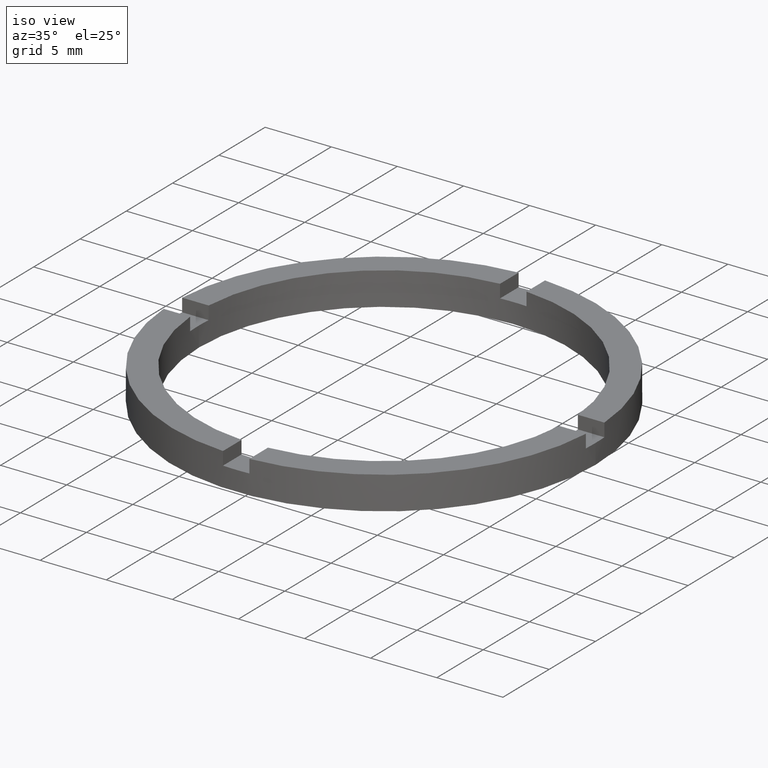
[diagram: clean part render]
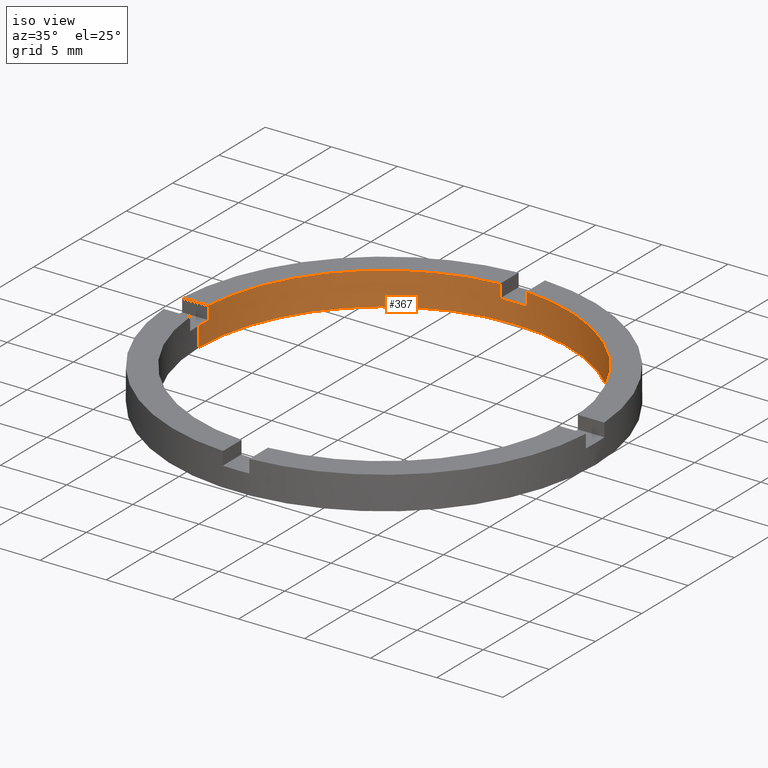
[diagram: same view with one face highlighted and labeled with its STEP entity id]
A machine part, iso view. The second image highlights one B-rep face of the part: STEP entity #367.
In plain terms, the highlighted cylindrical surface (partial cylindrical patch) has radius 14 mm, axis along (-0, -0, -1).
Its self-contained STEP definition (entity closure, byte-faithful):
#3 = DIRECTION ( 'NONE',  ( 1.000000000000000000, 0.000000000000000000, 0.000000000000000000 ) ) ;
#14 = CARTESIAN_POINT ( 'NONE',  ( 14.00000000000000000, 1.714505518806294638E-15, 0.000000000000000000 ) ) ;
#15 = CARTESIAN_POINT ( 'NONE',  ( 0.000000000000000000, 0.000000000000000000, 1.500000000000000000 ) ) ;
#21 = CARTESIAN_POINT ( 'NONE',  ( 0.9999999999999751310, 13.96424004376894423, 2.500000000000000000 ) ) ;
#57 = AXIS2_PLACEMENT_3D ( 'NONE', #622, #369, #714 ) ;
#72 = EDGE_LOOP ( 'NONE', ( #407, #153, #203, #399, #496, #404, #638, #409, #716, #642, #121, #150 ) ) ;
#87 = EDGE_CURVE ( 'NONE', #633, #169, #712, .T. ) ;
#98 = VERTEX_POINT ( 'NONE', #314 ) ;
#103 = CARTESIAN_POINT ( 'NONE',  ( -14.00000000000000000, 0.000000000000000000, 1.500000000000000000 ) ) ;
#121 = ORIENTED_EDGE ( 'NONE', *, *, #247, .T. ) ;
#122 = CARTESIAN_POINT ( 'NONE',  ( 13.96424004376895311, 0.9999999999998409050, 2.500000000000000000 ) ) ;
#149 = VERTEX_POINT ( 'NONE', #449 ) ;
#150 = ORIENTED_EDGE ( 'NONE', *, *, #593, .F. ) ;
#153 = ORIENTED_EDGE ( 'NONE', *, *, #278, .T. ) ;
#158 = CIRCLE ( 'NONE', #234, 14.00000000000000000 ) ;
#162 = CARTESIAN_POINT ( 'NONE',  ( 0.000000000000000000, 0.000000000000000000, 0.000000000000000000 ) ) ;
#169 = VERTEX_POINT ( 'NONE', #318 ) ;
#170 = VECTOR ( 'NONE', #259, 1000.000000000000000 ) ;
#188 = VERTEX_POINT ( 'NONE', #21 ) ;
#194 = EDGE_CURVE ( 'NONE', #345, #188, #665, .T. ) ;
#195 = CARTESIAN_POINT ( 'NONE',  ( 0.000000000000000000, 0.000000000000000000, 2.500000000000000000 ) ) ;
#203 = ORIENTED_EDGE ( 'NONE', *, *, #291, .F. ) ;
#204 = CARTESIAN_POINT ( 'NONE',  ( -14.00000000000000000, 0.000000000000000000, 2.500000000000000000 ) ) ;
#205 = CARTESIAN_POINT ( 'NONE',  ( -13.96424004376894246, 0.9999999999999772404, 2.500000000000000000 ) ) ;
#206 = VERTEX_POINT ( 'NONE', #284 ) ;
#212 = CIRCLE ( 'NONE', #250, 14.00000000000000000 ) ;
#219 = DIRECTION ( 'NONE',  ( -0.000000000000000000, -0.000000000000000000, -1.000000000000000000 ) ) ;
#222 = VECTOR ( 'NONE', #249, 1000.000000000000000 ) ;
#226 = VECTOR ( 'NONE', #265, 1000.000000000000000 ) ;
#230 = CYLINDRICAL_SURFACE ( 'NONE', #57, 14.00000000000000000 ) ;
#234 = AXIS2_PLACEMENT_3D ( 'NONE', #587, #543, #274 ) ;
#237 = AXIS2_PLACEMENT_3D ( 'NONE', #390, #544, #319 ) ;
#245 = CARTESIAN_POINT ( 'NONE',  ( 0.000000000000000000, 0.000000000000000000, 2.500000000000000000 ) ) ;
#247 = EDGE_CURVE ( 'NONE', #745, #206, #675, .T. ) ;
#249 = DIRECTION ( 'NONE',  ( 0.000000000000000000, 0.000000000000000000, 1.000000000000000000 ) ) ;
#250 = AXIS2_PLACEMENT_3D ( 'NONE', #162, #464, #3 ) ;
#259 = DIRECTION ( 'NONE',  ( -0.000000000000000000, -0.000000000000000000, -1.000000000000000000 ) ) ;
#265 = DIRECTION ( 'NONE',  ( -0.000000000000000000, -0.000000000000000000, -1.000000000000000000 ) ) ;
#269 = AXIS2_PLACEMENT_3D ( 'NONE', #245, #709, #281 ) ;
#274 = DIRECTION ( 'NONE',  ( 1.000000000000000000, 0.000000000000000000, 0.000000000000000000 ) ) ;
#278 = EDGE_CURVE ( 'NONE', #394, #453, #158, .T. ) ;
#281 = DIRECTION ( 'NONE',  ( 1.000000000000000000, 0.000000000000000000, 0.000000000000000000 ) ) ;
#284 = CARTESIAN_POINT ( 'NONE',  ( -14.00000000000000000, 0.000000000000000000, 0.000000000000000000 ) ) ;
#286 = EDGE_CURVE ( 'NONE', #394, #608, #411, .T. ) ;
#291 = EDGE_CURVE ( 'NONE', #345, #453, #428, .T. ) ;
#298 = CARTESIAN_POINT ( 'NONE',  ( 13.96424004376895311, 0.9999999999998409050, 2.500000000000000000 ) ) ;
#314 = CARTESIAN_POINT ( 'NONE',  ( -13.96424004376894246, 0.9999999999999772404, 1.500000000000000000 ) ) ;
#318 = CARTESIAN_POINT ( 'NONE',  ( -1.000000000000024869, 13.96424004376894068, 1.500000000000000000 ) ) ;
#319 = DIRECTION ( 'NONE',  ( 1.000000000000000000, 0.000000000000000000, 0.000000000000000000 ) ) ;
#344 = LINE ( 'NONE', #643, #657 ) ;
#345 = VERTEX_POINT ( 'NONE', #298 ) ;
#367 = ADVANCED_FACE ( 'NONE', ( #485 ), #230, .F. ) ;
#369 = DIRECTION ( 'NONE',  ( -0.000000000000000000, -0.000000000000000000, -1.000000000000000000 ) ) ;
#390 = CARTESIAN_POINT ( 'NONE',  ( 0.000000000000000000, 0.000000000000000000, 1.500000000000000000 ) ) ;
#394 = VERTEX_POINT ( 'NONE', #703 ) ;
#399 = ORIENTED_EDGE ( 'NONE', *, *, #194, .T. ) ;
#403 = EDGE_CURVE ( 'NONE', #149, #169, #470, .T. ) ;
#404 = ORIENTED_EDGE ( 'NONE', *, *, #87, .T. ) ;
#407 = ORIENTED_EDGE ( 'NONE', *, *, #286, .F. ) ;
#409 = ORIENTED_EDGE ( 'NONE', *, *, #586, .T. ) ;
#411 = LINE ( 'NONE', #500, #427 ) ;
#417 = DIRECTION ( 'NONE',  ( 1.000000000000000000, 0.000000000000000000, 0.000000000000000000 ) ) ;
#427 = VECTOR ( 'NONE', #718, 1000.000000000000000 ) ;
#428 = LINE ( 'NONE', #122, #429 ) ;
#429 = VECTOR ( 'NONE', #219, 1000.000000000000000 ) ;
#449 = CARTESIAN_POINT ( 'NONE',  ( -1.000000000000024869, 13.96424004376894068, 2.500000000000000000 ) ) ;
#453 = VERTEX_POINT ( 'NONE', #541 ) ;
#464 = DIRECTION ( 'NONE',  ( 0.000000000000000000, 0.000000000000000000, 1.000000000000000000 ) ) ;
#470 = LINE ( 'NONE', #779, #226 ) ;
#485 = FACE_OUTER_BOUND ( 'NONE', #72, .T. ) ;
#496 = ORIENTED_EDGE ( 'NONE', *, *, #694, .F. ) ;
#500 = CARTESIAN_POINT ( 'NONE',  ( 14.00000000000000000, 1.714505518806294638E-15, 2.500000000000000000 ) ) ;
#541 = CARTESIAN_POINT ( 'NONE',  ( 13.96424004376895311, 0.9999999999998409050, 1.500000000000000000 ) ) ;
#543 = DIRECTION ( 'NONE',  ( 0.000000000000000000, 0.000000000000000000, 1.000000000000000000 ) ) ;
#544 = DIRECTION ( 'NONE',  ( 0.000000000000000000, -0.000000000000000000, 1.000000000000000000 ) ) ;
#557 = DIRECTION ( 'NONE',  ( 0.000000000000000000, 0.000000000000000000, 1.000000000000000000 ) ) ;
#566 = EDGE_CURVE ( 'NONE', #98, #719, #758, .T. ) ;
#580 = EDGE_CURVE ( 'NONE', #98, #745, #746, .T. ) ;
#586 = EDGE_CURVE ( 'NONE', #149, #719, #763, .T. ) ;
#587 = CARTESIAN_POINT ( 'NONE',  ( 0.000000000000000000, 0.000000000000000000, 1.500000000000000000 ) ) ;
#589 = DIRECTION ( 'NONE',  ( 0.000000000000000000, 0.000000000000000000, 1.000000000000000000 ) ) ;
#592 = AXIS2_PLACEMENT_3D ( 'NONE', #15, #557, #417 ) ;
#593 = EDGE_CURVE ( 'NONE', #608, #206, #212, .T. ) ;
#608 = VERTEX_POINT ( 'NONE', #14 ) ;
#622 = CARTESIAN_POINT ( 'NONE',  ( 0.000000000000000000, 0.000000000000000000, 2.500000000000000000 ) ) ;
#633 = VERTEX_POINT ( 'NONE', #733 ) ;
#636 = CARTESIAN_POINT ( 'NONE',  ( -13.96424004376894246, 0.9999999999999772404, 2.500000000000000000 ) ) ;
#638 = ORIENTED_EDGE ( 'NONE', *, *, #403, .F. ) ;
#642 = ORIENTED_EDGE ( 'NONE', *, *, #580, .T. ) ;
#643 = CARTESIAN_POINT ( 'NONE',  ( 0.9999999999999751310, 13.96424004376894423, 2.500000000000000000 ) ) ;
#657 = VECTOR ( 'NONE', #741, 1000.000000000000000 ) ;
#665 = CIRCLE ( 'NONE', #688, 14.00000000000000000 ) ;
#675 = LINE ( 'NONE', #204, #170 ) ;
#688 = AXIS2_PLACEMENT_3D ( 'NONE', #195, #589, #762 ) ;
#694 = EDGE_CURVE ( 'NONE', #633, #188, #344, .T. ) ;
#703 = CARTESIAN_POINT ( 'NONE',  ( 14.00000000000000000, 1.714505518806294638E-15, 1.500000000000000000 ) ) ;
#709 = DIRECTION ( 'NONE',  ( 0.000000000000000000, 0.000000000000000000, 1.000000000000000000 ) ) ;
#712 = CIRCLE ( 'NONE', #237, 14.00000000000000000 ) ;
#714 = DIRECTION ( 'NONE',  ( -1.000000000000000000, 0.000000000000000000, 0.000000000000000000 ) ) ;
#716 = ORIENTED_EDGE ( 'NONE', *, *, #566, .F. ) ;
#718 = DIRECTION ( 'NONE',  ( -0.000000000000000000, -0.000000000000000000, -1.000000000000000000 ) ) ;
#719 = VERTEX_POINT ( 'NONE', #205 ) ;
#733 = CARTESIAN_POINT ( 'NONE',  ( 0.9999999999999751310, 13.96424004376894423, 1.500000000000000000 ) ) ;
#741 = DIRECTION ( 'NONE',  ( 0.000000000000000000, 0.000000000000000000, 1.000000000000000000 ) ) ;
#745 = VERTEX_POINT ( 'NONE', #103 ) ;
#746 = CIRCLE ( 'NONE', #592, 14.00000000000000000 ) ;
#758 = LINE ( 'NONE', #636, #222 ) ;
#762 = DIRECTION ( 'NONE',  ( 1.000000000000000000, 0.000000000000000000, 0.000000000000000000 ) ) ;
#763 = CIRCLE ( 'NONE', #269, 14.00000000000000000 ) ;
#779 = CARTESIAN_POINT ( 'NONE',  ( -1.000000000000024869, 13.96424004376894068, 2.500000000000000000 ) ) ;